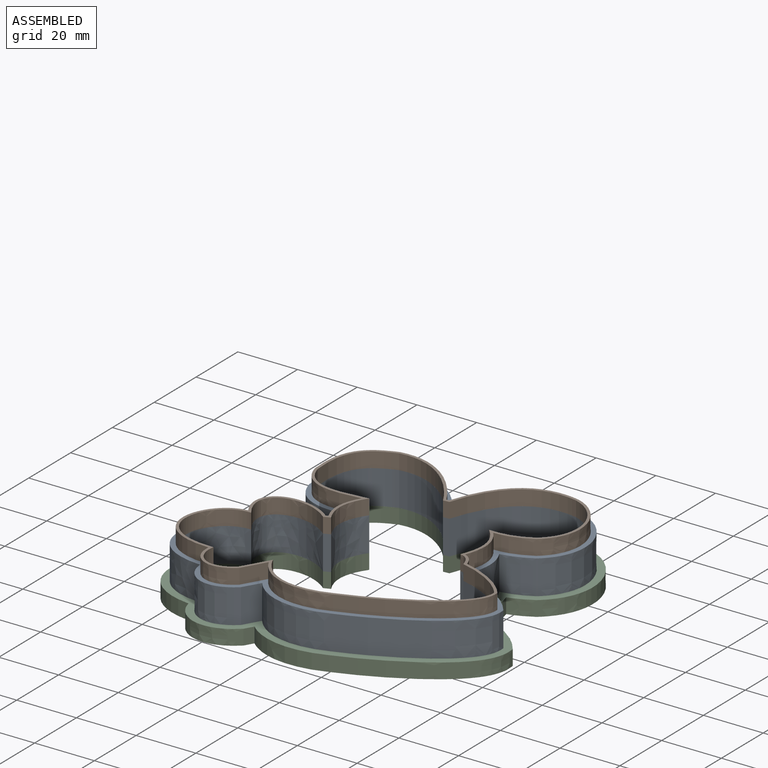
[diagram: assembled view]
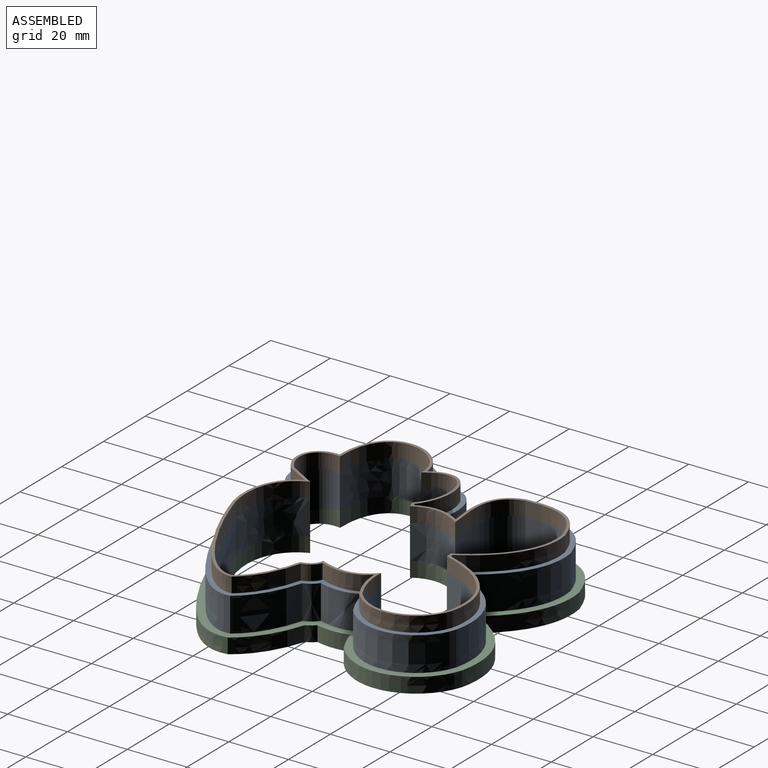
[diagram: assembled view, second angle]
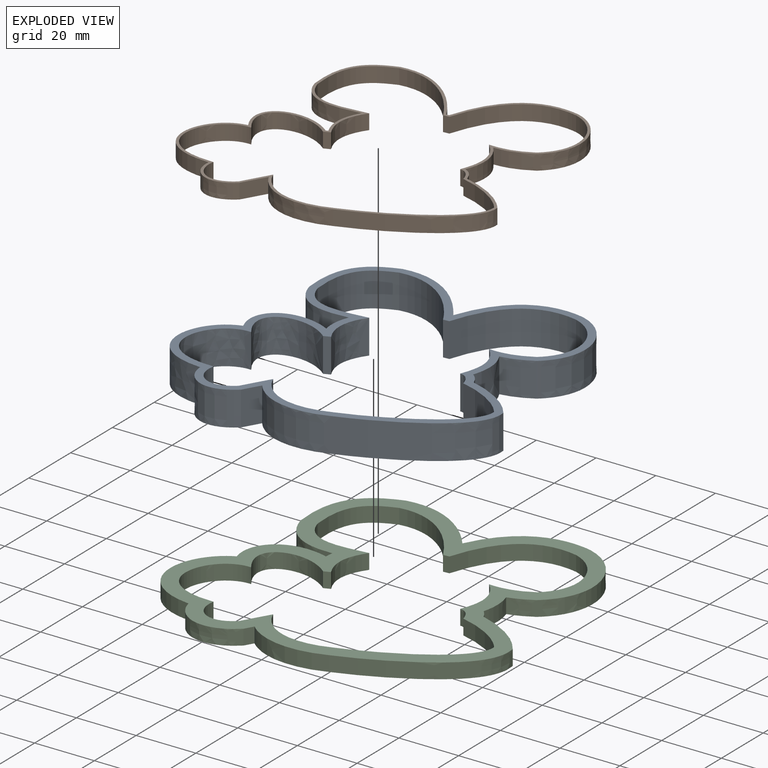
[diagram: exploded view]
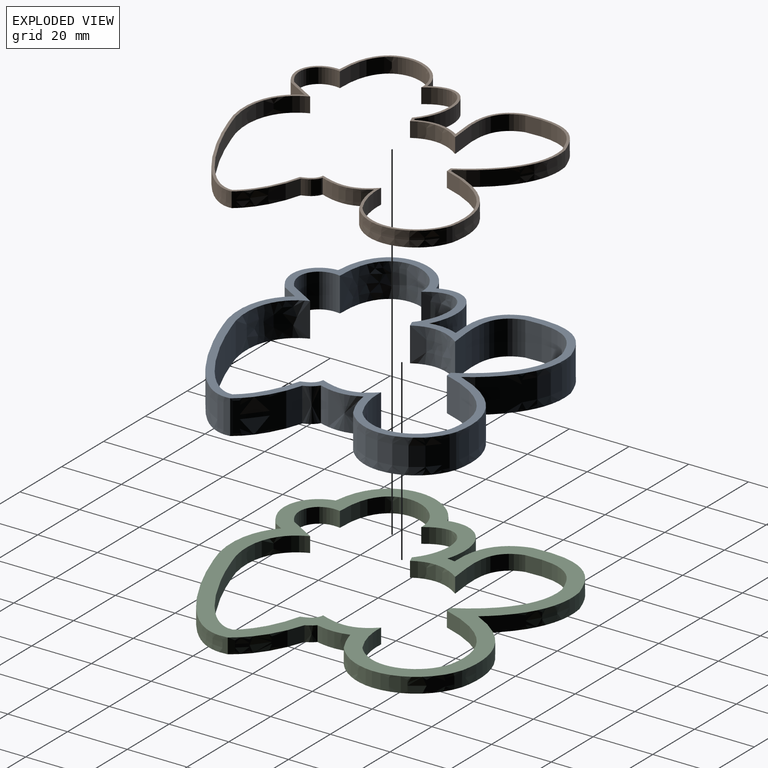
[diagram: exploded view, second angle]
ASSEMBLY  parts=3 mates=2
PART A: 36 faces, bbox 104.6x97.2x11.9 mm
  f0: plane 104.57x97.18mm, normal (0,0,1), area 1069.6mm2, adj f2,f3,f4,f5,f6,f7,f8,f9
  f1: plane 104.57x97.18mm, normal (0,0,-1), area 1069.6mm2, adj f2,f3,f4,f5,f6,f7,f8,f9
  f2: extruded ~28.61x16.92mm, area 401.2mm2, adj f0,f1,f3,f17
  f3: extruded ~23.98x14.61mm, area 355.1mm2, adj f0,f1,f2,f4
  f4: extruded ~20.42x11.43mm, area 291.2mm2, adj f0,f1,f3,f5
  f5: extruded ~11.43x9.44mm, area 110.3mm2, adj f0,f1,f4,f6
  f6: extruded ~20.91x14.05mm, area 359mm2, adj f0,f1,f5,f7
  f7: extruded ~28.79x17.04mm, area 508.6mm2, adj f0,f1,f6,f8
  f8: extruded ~17.53x11.43mm, area 269.8mm2, adj f0,f1,f7,f9
  f9: plane 11.43x5.57mm, normal (0.87,-0.5,0), area 73.6mm2, adj f0,f1,f8,f10
  f10: extruded ~27x11.43mm, area 339mm2, adj f0,f1,f9,f11
  f11: extruded ~37.49x28.77mm, area 568.1mm2, adj f0,f1,f10,f12
  f12: extruded ~18.03x11.52mm, area 249.4mm2, adj f0,f1,f11,f13
  f13: extruded ~11.43x4.12mm, area 59.8mm2, adj f0,f1,f12,f14
  f14: extruded ~13.69x11.43mm, area 161.8mm2, adj f0,f1,f13,f15
  f15: extruded ~11.43x10.05mm, area 122.7mm2, adj f0,f1,f14,f16
  f16: extruded ~30.52x12.53mm, area 437mm2, adj f0,f1,f15,f17
  f17: extruded ~30.04x20.11mm, area 453.6mm2, adj f0,f1,f2,f16
  f18: plane 11.43x2.03mm, normal (0.08,-1,0), area 23.2mm2, adj f0,f1,f19,f35
  f19: extruded ~27.39x18.32mm, area 399.4mm2, adj f0,f1,f18,f20
  f20: extruded ~21.06x12.68mm, area 311.5mm2, adj f0,f1,f19,f21
  f21: extruded ~22.59x11.43mm, area 304.8mm2, adj f0,f1,f20,f22
  f22: extruded ~16.14x11.43mm, area 197.6mm2, adj f0,f1,f21,f23
  f23: plane 11.43x2.1mm, normal (0.37,-0.93,0), area 25.9mm2, adj f0,f1,f22,f24
  f24: extruded ~20.41x13.58mm, area 373.2mm2, adj f0,f1,f23,f25
  f25: extruded ~24.23x17.21mm, area 496.5mm2, adj f0,f1,f24,f26
  f26: extruded ~13.03x11.43mm, area 227.1mm2, adj f0,f1,f25,f27
  f27: plane 11.43x9.05mm, normal (-0.87,0.5,0), area 119.6mm2, adj f0,f1,f26,f28
  f28: extruded ~26.1x11.43mm, area 349.2mm2, adj f0,f1,f27,f29
  f29: extruded ~35.82x25.44mm, area 523.3mm2, adj f0,f1,f28,f30
  f30: extruded ~17.55x11.43mm, area 237.2mm2, adj f0,f1,f29,f31
  f31: extruded ~11.43x4.72mm, area 78.6mm2, adj f0,f1,f30,f32
  f32: extruded ~17.57x11.43mm, area 218.3mm2, adj f0,f1,f31,f33
  f33: extruded ~13.64x11.43mm, area 162.8mm2, adj f0,f1,f32,f34
  f34: extruded ~25.97x11.43mm, area 371mm2, adj f0,f1,f33,f35
  f35: extruded ~27.96x21.35mm, area 445.4mm2, adj f0,f1,f18,f34
PART B: 38 faces, bbox 107.4x99.2x10.1 mm
  f0: plane 107.44x99.16mm, normal (0,0,1), area 376.7mm2, adj f2,f3,f4,f5,f6,f7,f8,f9
  f1: plane 107.44x99.16mm, normal (0,0,-1), area 376.7mm2, adj f2,f3,f4,f5,f6,f7,f8,f9
  f2: plane 5.08x0.86mm, normal (-0.08,1,0), area 4.4mm2, adj f0,f1,f3,f19
  f3: extruded ~28.1x18.28mm, area 180.5mm2, adj f0,f1,f2,f4
  f4: extruded ~22.08x13.36mm, area 145.3mm2, adj f0,f1,f3,f5
  f5: extruded ~21.67x9.26mm, area 132.6mm2, adj f0,f1,f4,f6
  f6: extruded ~14.59x5.08mm, area 77.9mm2, adj f0,f1,f5,f7
  f7: plane 5.08x0.69mm, normal (-0.37,0.93,0), area 3.8mm2, adj f0,f1,f6,f8
  f8: extruded ~21.46x13.61mm, area 167.8mm2, adj f0,f1,f7,f9
  f9: extruded ~25.98x17.06mm, area 221.3mm2, adj f0,f1,f8,f10
  f10: extruded ~14.61x9.01mm, area 107.4mm2, adj f0,f1,f9,f11
  f11: plane 7.7x5.08mm, normal (0.87,-0.5,0), area 45.2mm2, adj f0,f1,f10,f12
  f12: extruded ~26.49x9.1mm, area 153.2mm2, adj f0,f1,f11,f13
  f13: extruded ~36.41x26.61mm, area 239.7mm2, adj f0,f1,f12,f14
  f14: extruded ~17.7x10.75mm, area 107.3mm2, adj f0,f1,f13,f15
  f15: extruded ~5.08x4.64mm, area 31.9mm2, adj f0,f1,f14,f16
  f16: extruded ~15.97x5.08mm, area 86.2mm2, adj f0,f1,f15,f17
  f17: extruded ~12.11x5.08mm, area 64.7mm2, adj f0,f1,f16,f18
  f18: extruded ~27.56x11.32mm, area 175.2mm2, adj f0,f1,f17,f19
  f19: extruded ~28.86x21.4mm, area 201.8mm2, adj f0,f1,f2,f18
  f20: plane 5.08x2.03mm, normal (0.08,-1,0), area 10.3mm2, adj f0,f1,f21,f37
  f21: extruded ~27.39x18.32mm, area 177.5mm2, adj f0,f1,f20,f22
  f22: extruded ~21.06x12.68mm, area 138.5mm2, adj f0,f1,f21,f23
  f23: extruded ~22.59x8.53mm, area 135.4mm2, adj f0,f1,f22,f24
  f24: extruded ~16.14x5.08mm, area 87.8mm2, adj f0,f1,f23,f25
  f25: plane 5.08x2.1mm, normal (0.37,-0.93,0), area 11.5mm2, adj f0,f1,f24,f26
  f26: extruded ~20.41x13.58mm, area 165.8mm2, adj f0,f1,f25,f27
  f27: extruded ~24.23x17.21mm, area 220.6mm2, adj f0,f1,f26,f28
  f28: extruded ~13.03x9.02mm, area 100.9mm2, adj f0,f1,f27,f29
  f29: plane 9.05x5.25mm, normal (-0.87,0.5,0), area 53.1mm2, adj f0,f1,f28,f30
  f30: extruded ~26.1x10.13mm, area 155.2mm2, adj f0,f1,f29,f31
  f31: extruded ~35.82x25.44mm, area 232.6mm2, adj f0,f1,f30,f32
  f32: extruded ~17.55x10.34mm, area 105.4mm2, adj f0,f1,f31,f33
  f33: extruded ~5.08x4.72mm, area 34.9mm2, adj f0,f1,f32,f34
  f34: extruded ~17.57x5.08mm, area 97mm2, adj f0,f1,f33,f35
  f35: extruded ~13.64x5.08mm, area 72.3mm2, adj f0,f1,f34,f36
  f36: extruded ~25.97x10.67mm, area 164.9mm2, adj f0,f1,f35,f37
  f37: extruded ~27.96x21.35mm, area 197.9mm2, adj f0,f1,f20,f36
PART C: 36 faces, bbox 109.8x104.1x7.4 mm
  f0: plane 109.75x104.1mm, normal (0,0,1), area 2125.9mm2, adj f2,f3,f4,f5,f6,f7,f8,f9
  f1: plane 109.75x104.1mm, normal (0,0,-1), area 2125.9mm2, adj f2,f3,f4,f5,f6,f7,f8,f9
  f2: extruded ~28.66x14.2mm, area 170.5mm2, adj f0,f1,f3,f17
  f3: extruded ~26.9x16.54mm, area 177.4mm2, adj f0,f1,f2,f4
  f4: extruded ~19.42x12.72mm, area 129.8mm2, adj f0,f1,f3,f5
  f5: extruded ~5.08x2.67mm, area 13.7mm2, adj f0,f1,f4,f6
  f6: extruded ~20.56x15.09mm, area 155.3mm2, adj f0,f1,f5,f7
  f7: extruded ~32.66x17.33mm, area 237.8mm2, adj f0,f1,f6,f8
  f8: extruded ~21.74x9.24mm, area 139.3mm2, adj f0,f1,f7,f9
  f9: plane 5.08x2.91mm, normal (0.87,-0.5,0), area 17.1mm2, adj f0,f1,f8,f10
  f10: extruded ~27.43x5.76mm, area 148.1mm2, adj f0,f1,f9,f11
  f11: extruded ~39.17x32.09mm, area 275.6mm2, adj f0,f1,f10,f12
  f12: extruded ~18.63x12.69mm, area 116.9mm2, adj f0,f1,f11,f13
  f13: extruded ~5.08x2.92mm, area 18.2mm2, adj f0,f1,f12,f14
  f14: extruded ~10.92x5.08mm, area 56.3mm2, adj f0,f1,f13,f15
  f15: extruded ~7.87x5.08mm, area 43.4mm2, adj f0,f1,f14,f16
  f16: extruded ~35.08x14.4mm, area 223.4mm2, adj f0,f1,f15,f17
  f17: extruded ~31.27x17.39mm, area 196.5mm2, adj f0,f1,f2,f16
  f18: plane 5.08x2.03mm, normal (0.08,-1,0), area 10.3mm2, adj f0,f1,f19,f35
  f19: extruded ~27.39x18.32mm, area 177.5mm2, adj f0,f1,f18,f20
  f20: extruded ~21.06x12.68mm, area 138.5mm2, adj f0,f1,f19,f21
  f21: extruded ~22.59x8.53mm, area 135.4mm2, adj f0,f1,f20,f22
  f22: extruded ~16.14x5.08mm, area 87.8mm2, adj f0,f1,f21,f23
  f23: plane 5.08x2.1mm, normal (0.37,-0.93,0), area 11.5mm2, adj f0,f1,f22,f24
  f24: extruded ~20.41x13.58mm, area 165.8mm2, adj f0,f1,f23,f25
  f25: extruded ~24.23x17.21mm, area 220.6mm2, adj f0,f1,f24,f26
  f26: extruded ~13.03x9.02mm, area 100.9mm2, adj f0,f1,f25,f27
  f27: plane 9.05x5.25mm, normal (-0.87,0.5,0), area 53.1mm2, adj f0,f1,f26,f28
  f28: extruded ~26.1x10.13mm, area 155.2mm2, adj f0,f1,f27,f29
  f29: extruded ~35.82x25.44mm, area 232.6mm2, adj f0,f1,f28,f30
  f30: extruded ~17.55x10.34mm, area 105.4mm2, adj f0,f1,f29,f31
  f31: extruded ~5.08x4.72mm, area 34.9mm2, adj f0,f1,f30,f32
  f32: extruded ~17.57x5.08mm, area 97mm2, adj f0,f1,f31,f33
  f33: extruded ~13.64x5.08mm, area 72.3mm2, adj f0,f1,f32,f34
  f34: extruded ~25.97x10.67mm, area 164.9mm2, adj f0,f1,f33,f35
  f35: extruded ~27.96x21.35mm, area 197.9mm2, adj f0,f1,f18,f34
PLACE A t=(197.77,7.82,5.08)mm
PLACE B t=(105.35,17.44,16.51)mm
PLACE C at identity
MATE fastened B.f1 <-> A.f0  axis (0,0,1) through (101.2,11.54,16.51)mm
MATE fastened A.f1 <-> C.f0  axis (0,0,1) through (101.2,11.54,5.08)mm
